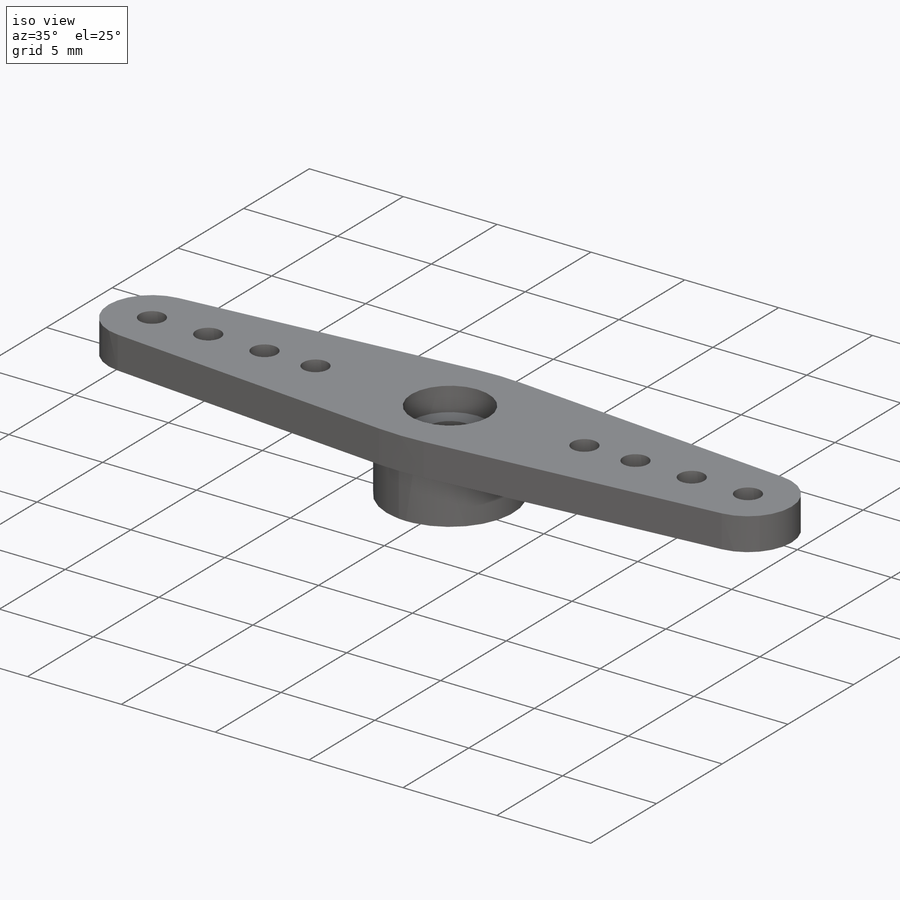
[diagram: iso view]
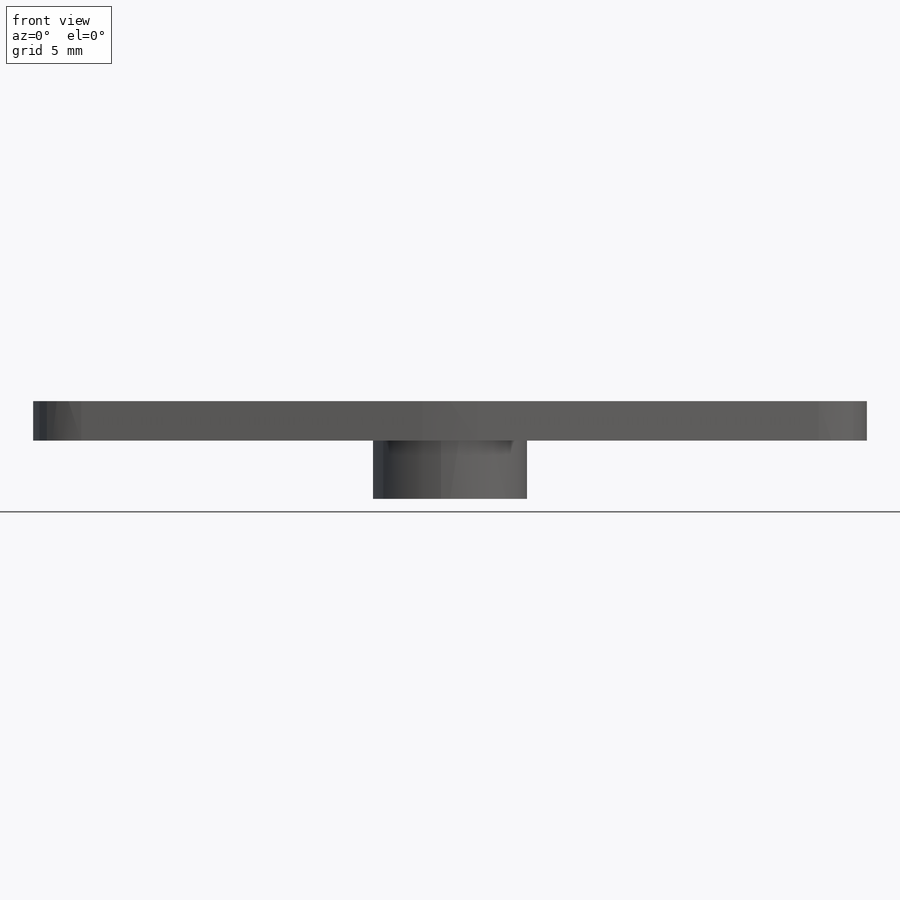
[diagram: front view]
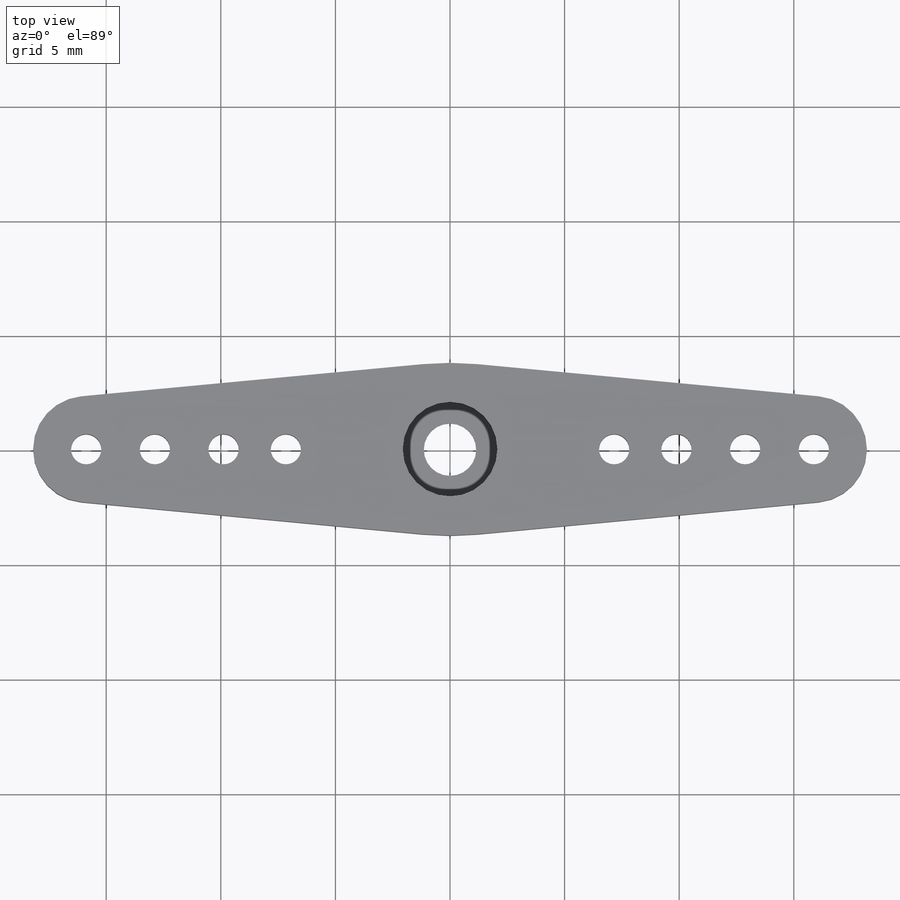
[diagram: top view]
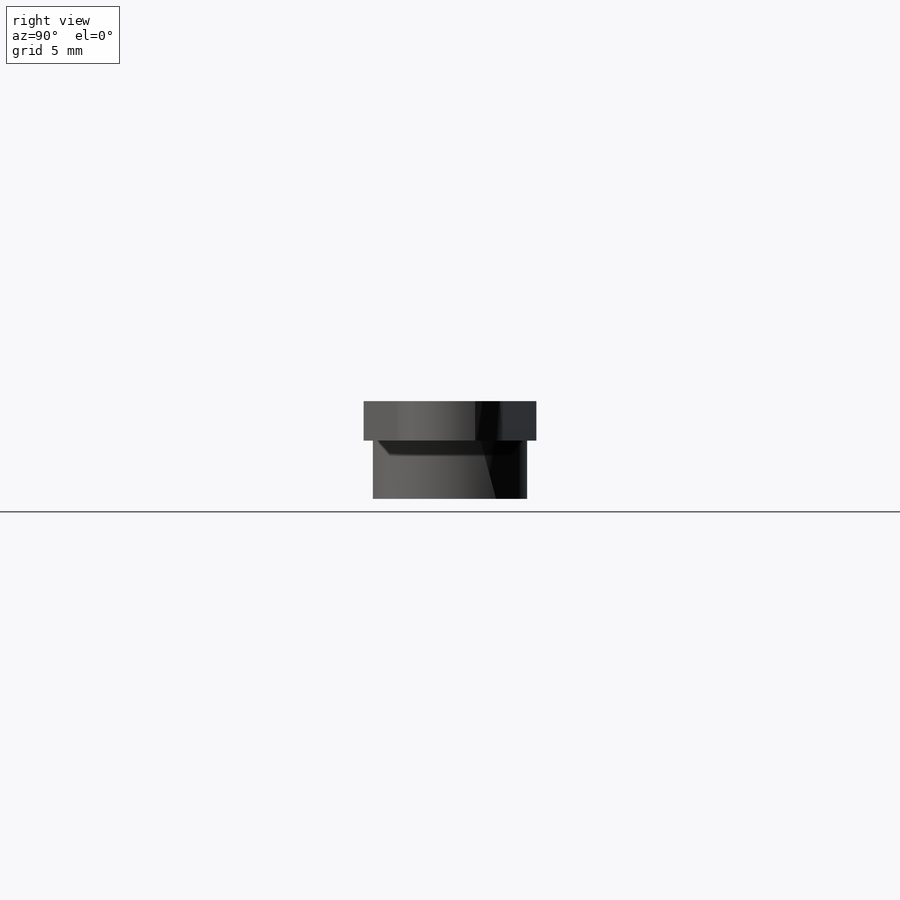
[diagram: right view]
SOLIDWORKS PART (.sldprt)
format: sldprt  version: not decoded by parser v0  size: 209,408 bytes
history: native  units: mm
features: sketch x3, extrude x2, material x1, fillet x1, cut_extrude x1 (+11 scaffold rows collapsed)
feature tree (19):
  scaffold x11  (default folders/planes/origin — collapsed)
  material  "Material <not specified>"
  sketch  "Sketch1"  dims[D1=6.731mm D2=4.4704mm]
  extrude  "Boss-Extrude1"  Depth=2.54mm
  sketch  "Sketch2"  dims[D1=1.3208mm D6=4.6355mm D7=7.6454mm D8=2.286mm D2=15.875mm D3=2.9972mm D4=5.9944mm D5=8.7122mm]
  extrude  "Boss-Extrude2"  Depth=1.7272mm
  fillet  "Fillet1"  Radius=12.7mm
  sketch  "Sketch3"  dims[D1=4.1275mm]
  cut_extrude  "Cut-Extrude1"  Depth=1.27mm
decode coverage: 7 of 7 modeling features carry decoded parameters
note: suppression state not decoded; provenance and decode notes live in map.json
